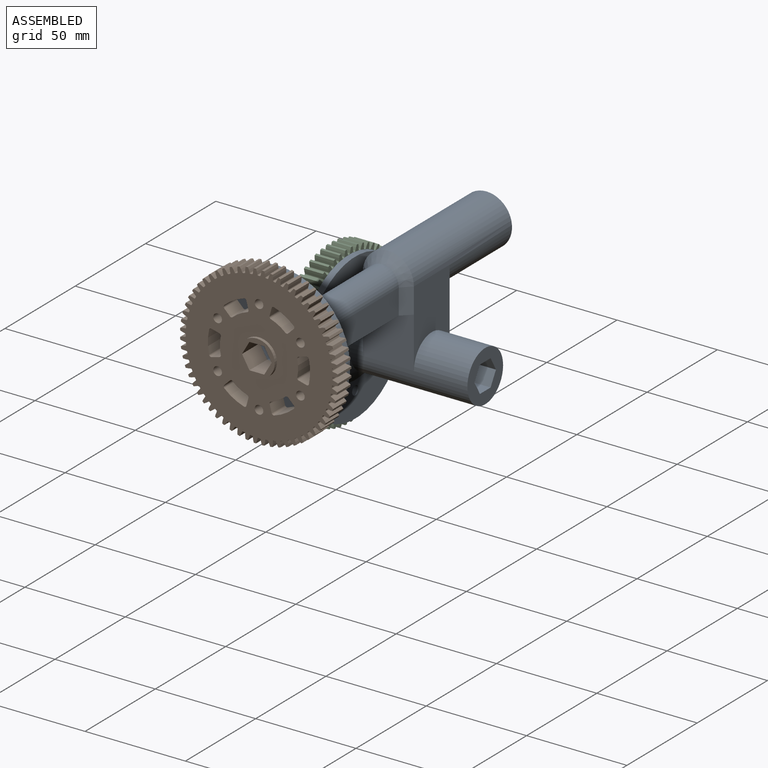
[diagram: assembled view]
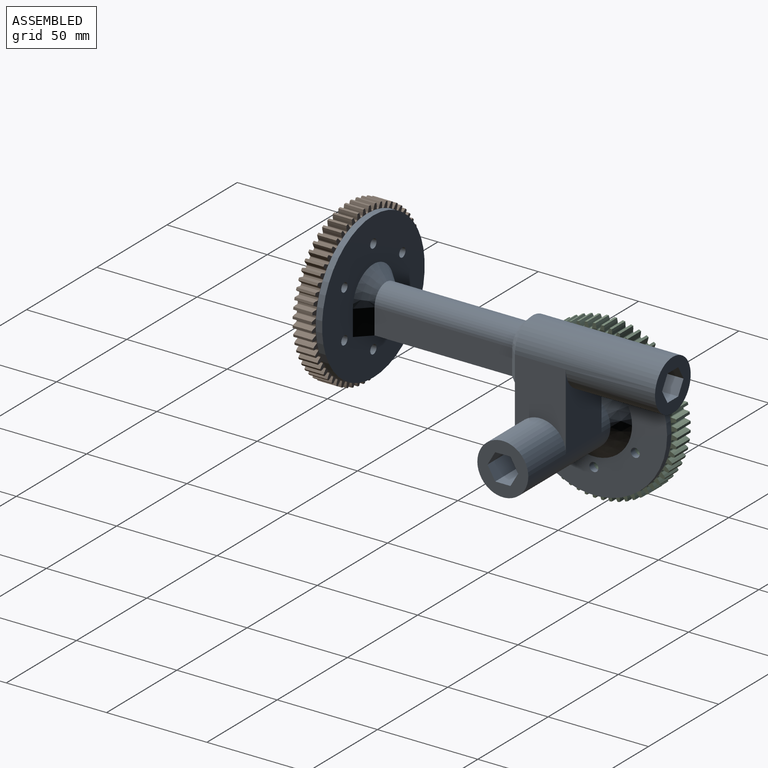
[diagram: assembled view, second angle]
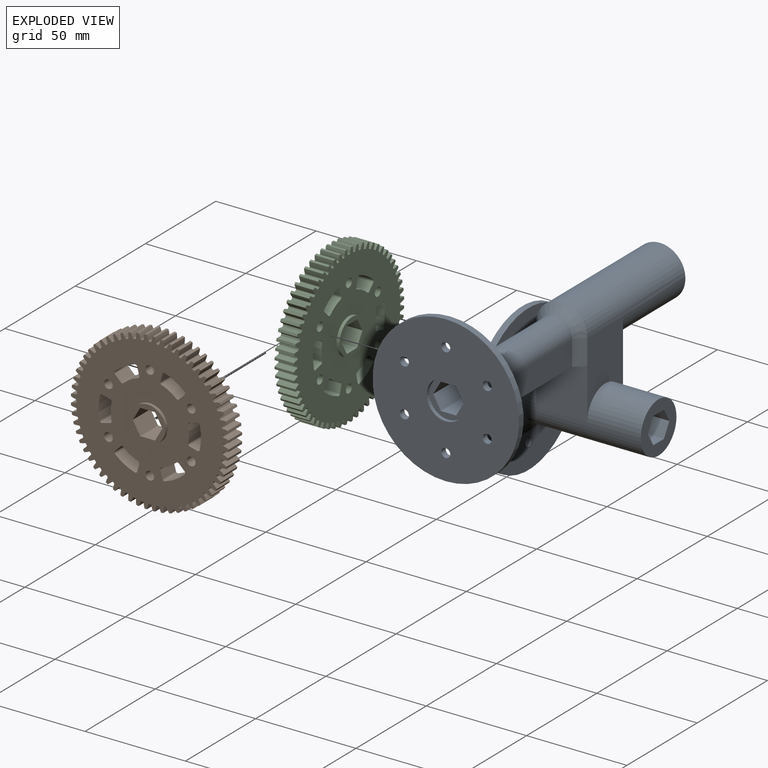
[diagram: exploded view]
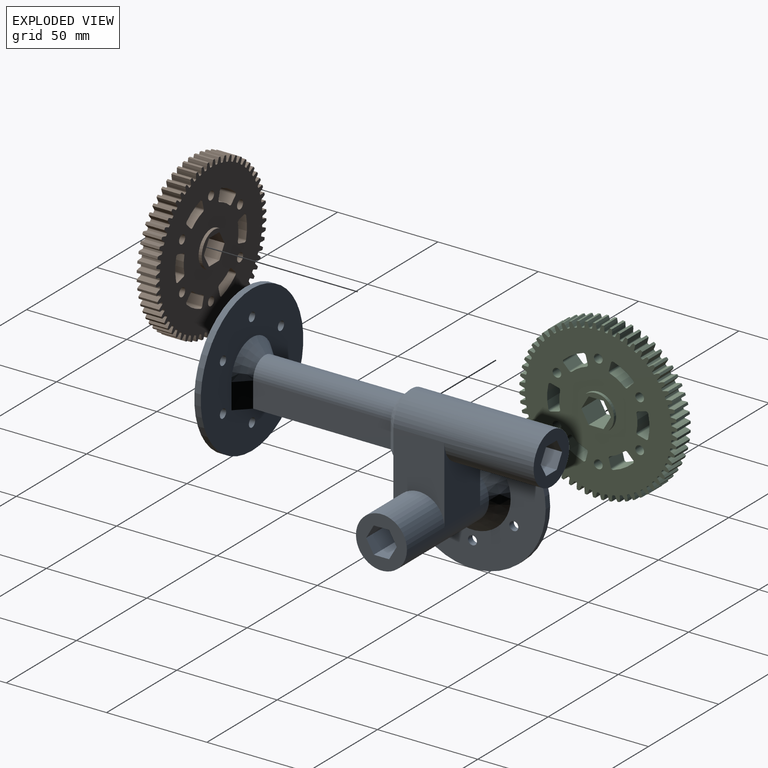
[diagram: exploded view, second angle]
ASSEMBLY  parts=3 mates=2
PART A: 53 faces, bbox 75.9x152.4x111.1 mm
  f0: plane 66.04x7.63mm, normal (0,0,-1), area 503.6mm2, adj f1,f5,f49,f52
  f1: plane 66.04x6.6mm, normal (0,-0.87,-0.5), area 503.6mm2, adj f0,f2,f49,f52
  f2: plane 66.04x6.6mm, normal (0,-0.87,0.5), area 503.6mm2, adj f1,f3,f49,f52
  f3: plane 66.04x7.63mm, normal (0,0,1), area 503.6mm2, adj f2,f4,f49,f52
  f4: plane 66.04x6.6mm, normal (0,0.87,0.5), area 503.6mm2, adj f3,f5,f49,f52
  f5: plane 66.04x6.6mm, normal (0,0.87,-0.5), area 503.6mm2, adj f0,f4,f49,f52
  f6: cylinder r=12.7mm len=58.42mm, axis (-1,0,0), area 3648.3mm2, adj f7,f18,f19,f20,f50,f52
  f7: plane 38.1x25.4mm, normal (0,1,0), area 714.4mm2, adj f6,f19,f20,f21
  f8: plane 150.5x7.63mm, normal (0,0,-1), area 1147.6mm2, adj f9,f13,f47,f51
  f9: plane 150.5x6.6mm, normal (-0.87,0,-0.5), area 1147.6mm2, adj f8,f10,f47,f51
  f10: plane 150.5x6.6mm, normal (-0.87,0,0.5), area 1147.6mm2, adj f9,f11,f47,f51
  f11: plane 150.5x7.63mm, normal (0,0,1), area 1147.6mm2, adj f10,f12,f47,f51
  f12: plane 150.5x6.6mm, normal (0.87,0,0.5), area 1147.6mm2, adj f11,f13,f47,f51
  f13: plane 150.5x6.6mm, normal (0.87,0,-0.5), area 1147.6mm2, adj f8,f12,f47,f51
  f14: cylinder r=8.26mm len=68.58mm, axis (0,1,0), area 1778.5mm2, adj f15,f17,f24,f35
  f15: plane 68.58x12.7mm, normal (-1,0,0), area 871mm2, adj f14,f16,f23,f34
  f16: plane 79.38x29.21mm, normal (0,0,1), area 1370.6mm2, adj f15,f17,f18,f23,f25,f26,f34,f36
  f17: plane 68.58x12.7mm, normal (1,0,0), area 871mm2, adj f14,f16,f25,f36
  f18: plane 25.4x25.4mm, normal (0,-1,0), area 645.2mm2, adj f6,f16,f19,f20
  f19: plane 38.1x25.4mm, normal (1,0,0), area 714.4mm2, adj f6,f7,f18,f21,f25
  f20: plane 38.1x25.4mm, normal (-1,0,0), area 714.4mm2, adj f6,f7,f18,f21,f23
  f21: cylinder r=12.7mm len=69.85mm, axis (0,-1,0), area 4560.4mm2, adj f7,f19,f20,f24,f51
  f22: plane 73.03x73.03mm, normal (0,-1,0), area 3810.1mm2, adj f27,f28,f29,f30,f31,f32,f33,f46
  f23: plane 12.7x4.45mm, normal (-0.71,-0.71,0), area 79.8mm2, adj f15,f16,f20,f24
  f24: cone r=8.26mm half-angle=45deg, axis (0,1,0), area 206.9mm2, adj f14,f21,f23,f25
  f25: plane 12.7x4.45mm, normal (0.71,-0.71,0), area 79.8mm2, adj f16,f17,f19,f24
  f26: plane 73.03x73.03mm, normal (0,1,0), area 3389.1mm2, adj f16,f27,f28,f29,f30,f31,f32,f33
  f27: cylinder r=36.51mm len=73.03mm, axis (0,-1,0), area 728.4mm2, adj f22,f26
  f28: cylinder r=2.22mm len=4.45mm, axis (0,-1,0), area 44.3mm2, adj f22,f26
  f29: cylinder r=2.22mm len=4.45mm, axis (0,-1,0), area 44.3mm2, adj f22,f26
  f30: cylinder r=2.22mm len=4.45mm, axis (0,-1,0), area 44.3mm2, adj f22,f26
  f31: cylinder r=2.22mm len=4.45mm, axis (0,-1,0), area 44.3mm2, adj f22,f26
  f32: cylinder r=2.22mm len=4.45mm, axis (0,-1,0), area 44.3mm2, adj f22,f26
  f33: cylinder r=2.22mm len=4.45mm, axis (0,-1,0), area 44.3mm2, adj f22,f26
  f34: plane 12.7x6.35mm, normal (-0.71,0.71,0), area 114mm2, adj f15,f16,f26,f35
  f35: cone r=14.61mm half-angle=45deg, axis (0,-1,0), area 322.5mm2, adj f14,f26,f34,f36
  f36: plane 12.7x6.35mm, normal (0.71,0.71,0), area 114mm2, adj f16,f17,f26,f35
  f37: plane 73.03x73.03mm, normal (1,0,0), area 3810.1mm2, adj f38,f40,f41,f42,f43,f44,f45,f48
  f38: cylinder r=36.51mm len=73.03mm, axis (1,0,0), area 728.4mm2, adj f37,f39
  f39: plane 73.03x73.03mm, normal (-1,0,0), area 2955.1mm2, adj f38,f40,f41,f42,f43,f44,f45,f50
  f40: cylinder r=2.22mm len=4.45mm, axis (1,0,0), area 44.3mm2, adj f37,f39
  f41: cylinder r=2.22mm len=4.45mm, axis (1,0,0), area 44.3mm2, adj f37,f39
  f42: cylinder r=2.22mm len=4.45mm, axis (1,0,0), area 44.3mm2, adj f37,f39
  f43: cylinder r=2.22mm len=4.45mm, axis (1,0,0), area 44.3mm2, adj f37,f39
  f44: cylinder r=2.22mm len=4.45mm, axis (1,0,0), area 44.3mm2, adj f37,f39
  f45: cylinder r=2.22mm len=4.45mm, axis (1,0,0), area 44.3mm2, adj f37,f39
  f46: cylinder r=9.53mm len=19.05mm, axis (0,-1,0), area 114mm2, adj f22,f47
  f47: plane 19.05x19.05mm, normal (0,-1,0), area 133.9mm2, adj f8,f9,f10,f11,f12,f13,f46
  f48: cylinder r=9.53mm len=19.05mm, axis (1,0,0), area 114mm2, adj f37,f49
  f49: plane 19.05x19.05mm, normal (1,0,0), area 133.9mm2, adj f0,f1,f2,f3,f4,f5,f48
  f50: cone r=12.7mm half-angle=45deg, axis (1,0,0), area 895.7mm2, adj f6,f39
  f51: plane 25.4x25.4mm, normal (0,1,0), area 355.6mm2, adj f8,f9,f10,f11,f12,f13,f21
  f52: plane 25.4x25.4mm, normal (-1,0,0), area 355.6mm2, adj f0,f1,f2,f3,f4,f5,f6
PART B: 186 faces, bbox 78.7x12.6x78.7 mm
  f0: cylinder r=2.15mm len=9.53mm, axis (0,1,0), area 128.7mm2, adj f14,f15
  f1: cylinder r=1mm len=9.53mm, axis (0,1,0), area 14.5mm2, adj f14,f15,f179,f185
  f2: cylinder r=2.15mm len=9.53mm, axis (0,1,0), area 128.7mm2, adj f14,f15
  f3: cylinder r=1mm len=9.53mm, axis (0,1,0), area 15.3mm2, adj f14,f15,f177,f178
  f4: cylinder r=2.15mm len=9.53mm, axis (0,1,0), area 128.7mm2, adj f14,f15
  f5: cylinder r=1mm len=9.53mm, axis (0,1,0), area 15.3mm2, adj f14,f15,f170,f171
  f6: cylinder r=2.15mm len=9.53mm, axis (0,1,0), area 128.7mm2, adj f14,f15
  f7: cylinder r=1mm len=9.53mm, axis (0,1,0), area 15.3mm2, adj f14,f15,f161,f162
  f8: cylinder r=2.15mm len=9.53mm, axis (0,1,0), area 128.7mm2, adj f14,f15
  f9: cylinder r=1mm len=9.53mm, axis (0,1,0), area 15.3mm2, adj f14,f15,f154,f155
  f10: cylinder r=2.15mm len=9.53mm, axis (0,1,0), area 128.7mm2, adj f14,f15
  f11: cylinder r=1mm len=9.53mm, axis (0,1,0), area 14.5mm2, adj f14,f15,f145,f146
  f12: cylinder r=8.89mm len=17.78mm, axis (0,1,0), area 87.3mm2, adj f14,f137
  f13: cylinder r=8.89mm len=17.78mm, axis (0,1,0), area 87.3mm2, adj f15,f136
  f14: plane 78.68x78.68mm, normal (0,-1,0), area 3765.5mm2, adj f0,f1,f2,f3,f4,f5,f6,f7
  f15: plane 78.68x78.68mm, normal (0,1,0), area 3765.5mm2, adj f0,f1,f2,f3,f4,f5,f6,f7
  f16: cylinder r=39.37mm len=9.53mm, axis (0,-1,0), area 11mm2, adj f14,f15,f134,f135
  f17: cylinder r=39.37mm len=9.53mm, axis (0,-1,0), area 11mm2, adj f14,f15,f76,f135
  f18: cylinder r=39.37mm len=9.53mm, axis (0,-1,0), area 11mm2, adj f14,f15,f133,f134
  f19: cylinder r=39.37mm len=9.53mm, axis (0,-1,0), area 11mm2, adj f14,f15,f132,f133
  f20: cylinder r=39.37mm len=9.53mm, axis (0,-1,0), area 11mm2, adj f14,f15,f131,f132
  f21: cylinder r=39.37mm len=9.53mm, axis (0,-1,0), area 11mm2, adj f14,f15,f130,f131
  f22: cylinder r=39.37mm len=9.53mm, axis (0,-1,0), area 11mm2, adj f14,f15,f129,f130
  f23: cylinder r=39.37mm len=9.53mm, axis (0,-1,0), area 11mm2, adj f14,f15,f128,f129
  f24: cylinder r=39.37mm len=9.53mm, axis (0,-1,0), area 11mm2, adj f14,f15,f127,f128
  f25: cylinder r=39.37mm len=9.53mm, axis (0,-1,0), area 11mm2, adj f14,f15,f126,f127
  f26: cylinder r=39.37mm len=9.53mm, axis (0,-1,0), area 11mm2, adj f14,f15,f125,f126
  f27: cylinder r=39.37mm len=9.53mm, axis (0,-1,0), area 11mm2, adj f14,f15,f124,f125
  f28: cylinder r=39.37mm len=9.53mm, axis (0,-1,0), area 11mm2, adj f14,f15,f123,f124
  f29: cylinder r=39.37mm len=9.53mm, axis (0,-1,0), area 11mm2, adj f14,f15,f122,f123
  f30: cylinder r=39.37mm len=9.53mm, axis (0,-1,0), area 11mm2, adj f14,f15,f121,f122
  f31: cylinder r=39.37mm len=9.53mm, axis (0,-1,0), area 11mm2, adj f14,f15,f120,f121
  f32: cylinder r=39.37mm len=9.53mm, axis (0,-1,0), area 11mm2, adj f14,f15,f119,f120
  f33: cylinder r=39.37mm len=9.53mm, axis (0,-1,0), area 11mm2, adj f14,f15,f118,f119
  f34: cylinder r=39.37mm len=9.53mm, axis (0,-1,0), area 11mm2, adj f14,f15,f117,f118
  f35: cylinder r=39.37mm len=9.53mm, axis (0,-1,0), area 11mm2, adj f14,f15,f116,f117
  f36: cylinder r=39.37mm len=9.53mm, axis (0,-1,0), area 11mm2, adj f14,f15,f115,f116
  f37: cylinder r=39.37mm len=9.53mm, axis (0,-1,0), area 11mm2, adj f14,f15,f114,f115
  f38: cylinder r=39.37mm len=9.53mm, axis (0,-1,0), area 11mm2, adj f14,f15,f113,f114
  f39: cylinder r=39.37mm len=9.53mm, axis (0,-1,0), area 11mm2, adj f14,f15,f112,f113
  f40: cylinder r=39.37mm len=9.53mm, axis (0,-1,0), area 11mm2, adj f14,f15,f111,f112
  f41: cylinder r=39.37mm len=9.53mm, axis (0,-1,0), area 11mm2, adj f14,f15,f110,f111
  f42: cylinder r=39.37mm len=9.53mm, axis (0,-1,0), area 11mm2, adj f14,f15,f109,f110
  f43: cylinder r=39.37mm len=9.53mm, axis (0,-1,0), area 11mm2, adj f14,f15,f108,f109
  f44: cylinder r=39.37mm len=9.53mm, axis (0,-1,0), area 11mm2, adj f14,f15,f107,f108
  f45: cylinder r=39.37mm len=9.53mm, axis (0,-1,0), area 11mm2, adj f14,f15,f106,f107
  f46: cylinder r=39.37mm len=9.53mm, axis (0,-1,0), area 11mm2, adj f14,f15,f105,f106
  f47: cylinder r=39.37mm len=9.53mm, axis (0,-1,0), area 11mm2, adj f14,f15,f104,f105
  f48: cylinder r=39.37mm len=9.53mm, axis (0,-1,0), area 11mm2, adj f14,f15,f103,f104
  f49: cylinder r=39.37mm len=9.53mm, axis (0,-1,0), area 11mm2, adj f14,f15,f102,f103
  f50: cylinder r=39.37mm len=9.53mm, axis (0,-1,0), area 11mm2, adj f14,f15,f101,f102
  f51: cylinder r=39.37mm len=9.53mm, axis (0,-1,0), area 11mm2, adj f14,f15,f100,f101
  f52: cylinder r=39.37mm len=9.53mm, axis (0,-1,0), area 11mm2, adj f14,f15,f99,f100
  f53: cylinder r=39.37mm len=9.53mm, axis (0,-1,0), area 11mm2, adj f14,f15,f98,f99
  f54: cylinder r=39.37mm len=9.53mm, axis (0,-1,0), area 11mm2, adj f14,f15,f97,f98
  f55: cylinder r=39.37mm len=9.53mm, axis (0,-1,0), area 11mm2, adj f14,f15,f96,f97
  f56: cylinder r=39.37mm len=9.53mm, axis (0,-1,0), area 11mm2, adj f14,f15,f95,f96
  f57: cylinder r=39.37mm len=9.53mm, axis (0,-1,0), area 11mm2, adj f14,f15,f94,f95
  f58: cylinder r=39.37mm len=9.53mm, axis (0,-1,0), area 11mm2, adj f14,f15,f93,f94
  f59: cylinder r=39.37mm len=9.53mm, axis (0,-1,0), area 11mm2, adj f14,f15,f92,f93
  f60: cylinder r=39.37mm len=9.53mm, axis (0,-1,0), area 11mm2, adj f14,f15,f91,f92
  f61: cylinder r=39.37mm len=9.53mm, axis (0,-1,0), area 11mm2, adj f14,f15,f90,f91
  f62: cylinder r=39.37mm len=9.53mm, axis (0,-1,0), area 11mm2, adj f14,f15,f89,f90
  f63: cylinder r=39.37mm len=9.53mm, axis (0,-1,0), area 11mm2, adj f14,f15,f88,f89
  f64: cylinder r=39.37mm len=9.53mm, axis (0,-1,0), area 11mm2, adj f14,f15,f87,f88
  f65: cylinder r=39.37mm len=9.53mm, axis (0,-1,0), area 11mm2, adj f14,f15,f86,f87
  f66: cylinder r=39.37mm len=9.53mm, axis (0,-1,0), area 11mm2, adj f14,f15,f85,f86
  f67: cylinder r=39.37mm len=9.53mm, axis (0,-1,0), area 11mm2, adj f14,f15,f84,f85
  f68: cylinder r=39.37mm len=9.53mm, axis (0,-1,0), area 11mm2, adj f14,f15,f83,f84
  f69: cylinder r=39.37mm len=9.53mm, axis (0,-1,0), area 11mm2, adj f14,f15,f82,f83
  f70: cylinder r=39.37mm len=9.53mm, axis (0,-1,0), area 11mm2, adj f14,f15,f81,f82
  f71: cylinder r=39.37mm len=9.53mm, axis (0,-1,0), area 11mm2, adj f14,f15,f80,f81
  f72: cylinder r=39.37mm len=9.53mm, axis (0,-1,0), area 11mm2, adj f14,f15,f79,f80
  f73: cylinder r=39.37mm len=9.53mm, axis (0,-1,0), area 11mm2, adj f14,f15,f78,f79
  f74: cylinder r=39.37mm len=9.53mm, axis (0,-1,0), area 11mm2, adj f14,f15,f77,f78
  f75: cylinder r=39.37mm len=9.53mm, axis (0,-1,0), area 11mm2, adj f14,f15,f76,f77
  f76: bspline ~9.53x2.96mm, area 66.7mm2, adj f14,f15,f17,f75
  f77: bspline ~9.53x3mm, area 66.7mm2, adj f14,f15,f74,f75
  f78: bspline ~9.53x3.14mm, area 66.7mm2, adj f14,f15,f73,f74
  f79: bspline ~9.53x3.26mm, area 66.7mm2, adj f14,f15,f72,f73
  f80: bspline ~9.53x3.35mm, area 66.7mm2, adj f14,f15,f71,f72
  f81: bspline ~9.53x3.4mm, area 66.7mm2, adj f14,f15,f70,f71
  f82: bspline ~9.53x3.42mm, area 66.7mm2, adj f14,f15,f69,f70
  f83: bspline ~9.53x3.41mm, area 66.7mm2, adj f14,f15,f68,f69
  f84: bspline ~9.53x3.41mm, area 66.7mm2, adj f14,f15,f67,f68
  f85: bspline ~9.53x3.42mm, area 66.7mm2, adj f14,f15,f66,f67
  f86: bspline ~9.53x3.4mm, area 66.7mm2, adj f14,f15,f65,f66
  f87: bspline ~9.53x3.35mm, area 66.7mm2, adj f14,f15,f64,f65
  f88: bspline ~9.53x3.26mm, area 66.7mm2, adj f14,f15,f63,f64
  f89: bspline ~9.53x3.14mm, area 66.7mm2, adj f14,f15,f62,f63
  f90: bspline ~9.53x3mm, area 66.7mm2, adj f14,f15,f61,f62
  f91: bspline ~9.53x2.96mm, area 66.7mm2, adj f14,f15,f60,f61
  f92: bspline ~9.53x3mm, area 66.7mm2, adj f14,f15,f59,f60
  f93: bspline ~9.53x3.14mm, area 66.7mm2, adj f14,f15,f58,f59
  f94: bspline ~9.53x3.26mm, area 66.7mm2, adj f14,f15,f57,f58
  f95: bspline ~9.53x3.35mm, area 66.7mm2, adj f14,f15,f56,f57
  f96: bspline ~9.53x3.4mm, area 66.7mm2, adj f14,f15,f55,f56
  f97: bspline ~9.53x3.42mm, area 66.7mm2, adj f14,f15,f54,f55
  f98: bspline ~9.53x3.41mm, area 66.7mm2, adj f14,f15,f53,f54
  f99: bspline ~9.53x3.41mm, area 66.7mm2, adj f14,f15,f52,f53
  f100: bspline ~9.53x3.42mm, area 66.7mm2, adj f14,f15,f51,f52
  f101: bspline ~9.53x3.4mm, area 66.7mm2, adj f14,f15,f50,f51
  f102: bspline ~9.53x3.35mm, area 66.7mm2, adj f14,f15,f49,f50
  f103: bspline ~9.53x3.26mm, area 66.7mm2, adj f14,f15,f48,f49
  f104: bspline ~9.53x3.14mm, area 66.7mm2, adj f14,f15,f47,f48
  f105: bspline ~9.53x3mm, area 66.7mm2, adj f14,f15,f46,f47
  f106: bspline ~9.53x2.96mm, area 66.7mm2, adj f14,f15,f45,f46
  f107: bspline ~9.53x3mm, area 66.7mm2, adj f14,f15,f44,f45
  f108: bspline ~9.53x3.14mm, area 66.7mm2, adj f14,f15,f43,f44
  f109: bspline ~9.53x3.26mm, area 66.7mm2, adj f14,f15,f42,f43
  f110: bspline ~9.53x3.35mm, area 66.7mm2, adj f14,f15,f41,f42
  f111: bspline ~9.53x3.4mm, area 66.7mm2, adj f14,f15,f40,f41
  f112: bspline ~9.53x3.42mm, area 66.7mm2, adj f14,f15,f39,f40
  f113: bspline ~9.53x3.41mm, area 66.7mm2, adj f14,f15,f38,f39
  f114: bspline ~9.53x3.41mm, area 66.7mm2, adj f14,f15,f37,f38
  f115: bspline ~9.53x3.42mm, area 66.7mm2, adj f14,f15,f36,f37
  f116: bspline ~9.53x3.4mm, area 66.7mm2, adj f14,f15,f35,f36
  f117: bspline ~9.53x3.35mm, area 66.7mm2, adj f14,f15,f34,f35
  f118: bspline ~9.53x3.26mm, area 66.7mm2, adj f14,f15,f33,f34
  f119: bspline ~9.53x3.14mm, area 66.7mm2, adj f14,f15,f32,f33
  f120: bspline ~9.53x3mm, area 66.7mm2, adj f14,f15,f31,f32
  f121: bspline ~9.53x2.96mm, area 66.7mm2, adj f14,f15,f30,f31
  f122: bspline ~9.53x3mm, area 66.7mm2, adj f14,f15,f29,f30
  f123: bspline ~9.53x3.14mm, area 66.7mm2, adj f14,f15,f28,f29
  f124: bspline ~9.53x3.26mm, area 66.7mm2, adj f14,f15,f27,f28
  f125: bspline ~9.53x3.35mm, area 66.7mm2, adj f14,f15,f26,f27
  f126: bspline ~9.53x3.4mm, area 66.7mm2, adj f14,f15,f25,f26
  f127: bspline ~9.53x3.42mm, area 66.7mm2, adj f14,f15,f24,f25
  f128: bspline ~9.53x3.41mm, area 66.7mm2, adj f14,f15,f23,f24
  f129: bspline ~9.53x3.41mm, area 66.7mm2, adj f14,f15,f22,f23
  f130: bspline ~9.53x3.42mm, area 66.7mm2, adj f14,f15,f21,f22
  f131: bspline ~9.53x3.4mm, area 66.7mm2, adj f14,f15,f20,f21
  f132: bspline ~9.53x3.35mm, area 66.7mm2, adj f14,f15,f19,f20
  f133: bspline ~9.53x3.26mm, area 66.7mm2, adj f14,f15,f18,f19
  f134: bspline ~9.53x3.14mm, area 66.7mm2, adj f14,f15,f16,f18
  f135: bspline ~9.53x3mm, area 66.7mm2, adj f14,f15,f16,f17
  f136: plane 17.78x17.78mm, normal (0,1,0), area 106.9mm2, adj f13,f138,f139,f140,f141,f142,f143
  f137: plane 17.78x17.78mm, normal (0,-1,0), area 106.9mm2, adj f12,f138,f139,f140,f141,f142,f143
  f138: plane 12.65x7.38mm, normal (1,0,0), area 93.3mm2, adj f136,f137,f139,f143
  f139: plane 12.65x6.39mm, normal (0.5,0,0.87), area 93.3mm2, adj f136,f137,f138,f140
  f140: plane 12.65x6.39mm, normal (-0.5,0,0.87), area 93.3mm2, adj f136,f137,f139,f141
  f141: plane 12.65x7.38mm, normal (-1,0,0), area 93.3mm2, adj f136,f137,f140,f142
  f142: plane 12.65x6.39mm, normal (-0.5,0,-0.87), area 93.3mm2, adj f136,f137,f141,f143
  f143: plane 12.65x6.39mm, normal (0.5,0,-0.87), area 93.3mm2, adj f136,f137,f138,f142
  f144: cylinder r=1mm len=9.53mm, axis (0,1,0), area 14.5mm2, adj f14,f15,f145,f150
  f145: cylinder r=19.5mm len=9.53mm, axis (0,1,0), area 79.8mm2, adj f11,f14,f15,f144
  f146: plane 9.53x2.83mm, normal (0.71,0,0.71), area 38.1mm2, adj f11,f14,f15,f147
  f147: cylinder r=1mm len=9.53mm, axis (0,1,0), area 15.3mm2, adj f14,f15,f146,f148
  f148: cylinder r=25.5mm len=9.75mm, axis (0,1,0), area 108.1mm2, adj f14,f15,f147,f149
  f149: cylinder r=1mm len=9.53mm, axis (0,1,0), area 15.3mm2, adj f14,f15,f148,f150
  f150: plane 9.53x3.87mm, normal (-0.26,0,-0.97), area 38.1mm2, adj f14,f15,f144,f149
  f151: cylinder r=1mm len=9.53mm, axis (0,1,0), area 14.5mm2, adj f14,f15,f152,f157
  f152: cylinder r=19.5mm len=9.53mm, axis (0,1,0), area 79.8mm2, adj f14,f15,f151,f153
  f153: cylinder r=1mm len=9.53mm, axis (0,1,0), area 14.5mm2, adj f14,f15,f152,f154
  f154: plane 9.53x3.87mm, normal (0.97,0,-0.26), area 38.1mm2, adj f9,f14,f15,f153
  f155: cylinder r=25.5mm len=11.26mm, axis (0,1,0), area 108.1mm2, adj f9,f14,f15,f156
  f156: cylinder r=1mm len=9.53mm, axis (0,1,0), area 15.3mm2, adj f14,f15,f155,f157
  f157: plane 9.53x3.87mm, normal (-0.97,0,-0.26), area 38.1mm2, adj f14,f15,f151,f156
  f158: cylinder r=1mm len=9.53mm, axis (0,1,0), area 14.5mm2, adj f14,f15,f159,f164
  f159: cylinder r=19.5mm len=9.53mm, axis (0,1,0), area 79.8mm2, adj f14,f15,f158,f160
  f160: cylinder r=1mm len=9.53mm, axis (0,1,0), area 14.5mm2, adj f14,f15,f159,f161
  f161: plane 9.53x3.87mm, normal (0.26,0,-0.97), area 38.1mm2, adj f7,f14,f15,f160
  f162: cylinder r=25.5mm len=9.74mm, axis (0,1,0), area 108.1mm2, adj f7,f14,f15,f163
  f163: cylinder r=1mm len=9.53mm, axis (0,1,0), area 15.3mm2, adj f14,f15,f162,f164
  f164: plane 9.53x2.83mm, normal (-0.71,0,0.71), area 38.1mm2, adj f14,f15,f158,f163
  f165: cylinder r=1mm len=9.53mm, axis (0,1,0), area 14.5mm2, adj f14,f15,f166,f171
  f166: cylinder r=19.5mm len=9.53mm, axis (0,1,0), area 79.8mm2, adj f14,f15,f165,f167
  f167: cylinder r=1mm len=9.53mm, axis (0,1,0), area 14.5mm2, adj f14,f15,f166,f168
  f168: plane 9.53x2.83mm, normal (-0.71,0,-0.71), area 38.1mm2, adj f14,f15,f167,f169
  f169: cylinder r=1mm len=9.53mm, axis (0,1,0), area 15.3mm2, adj f14,f15,f168,f170
  f170: cylinder r=25.5mm len=9.75mm, axis (0,1,0), area 108.1mm2, adj f5,f14,f15,f169
  f171: plane 9.53x3.87mm, normal (0.26,0,0.97), area 38.1mm2, adj f5,f14,f15,f165
  f172: cylinder r=1mm len=9.53mm, axis (0,1,0), area 14.5mm2, adj f14,f15,f173,f178
  f173: cylinder r=19.5mm len=9.53mm, axis (0,1,0), area 79.8mm2, adj f14,f15,f172,f174
  f174: cylinder r=1mm len=9.53mm, axis (0,1,0), area 14.5mm2, adj f14,f15,f173,f175
  f175: plane 9.53x3.87mm, normal (-0.97,0,0.26), area 38.1mm2, adj f14,f15,f174,f176
  f176: cylinder r=1mm len=9.53mm, axis (0,1,0), area 15.3mm2, adj f14,f15,f175,f177
  f177: cylinder r=25.5mm len=11.26mm, axis (0,1,0), area 108.1mm2, adj f3,f14,f15,f176
  f178: plane 9.53x3.87mm, normal (0.97,0,0.26), area 38.1mm2, adj f3,f14,f15,f172
  f179: cylinder r=19.5mm len=9.53mm, axis (0,1,0), area 79.8mm2, adj f1,f14,f15,f180
  f180: cylinder r=1mm len=9.53mm, axis (0,1,0), area 14.5mm2, adj f14,f15,f179,f181
  f181: plane 9.53x3.87mm, normal (-0.26,0,0.97), area 38.1mm2, adj f14,f15,f180,f182
  f182: cylinder r=1mm len=9.53mm, axis (0,1,0), area 15.3mm2, adj f14,f15,f181,f183
  f183: cylinder r=25.5mm len=9.74mm, axis (0,1,0), area 108.1mm2, adj f14,f15,f182,f184
  f184: cylinder r=1mm len=9.53mm, axis (0,1,0), area 15.3mm2, adj f14,f15,f183,f185
  f185: plane 9.53x2.83mm, normal (0.71,0,-0.71), area 38.1mm2, adj f1,f14,f15,f184
PART C: same geometry as B
PLACE A rot(axis=(0,1,0),180deg) t=(78.74,0,19.05)mm
PLACE B rot(axis=(0,1,0),90deg) t=(0,-100.01,38.1)mm
PLACE C rot(axis=(-0.58,-0.58,-0.58),120deg) t=(-33.34,0,0)mm
MATE fastened C.f12 <-> A.f6  axis (1,0,0) through (-28.58,0,0)mm
MATE fastened B.f12 <-> A.f21  axis (0,1,0) through (0,-95.25,38.1)mm
